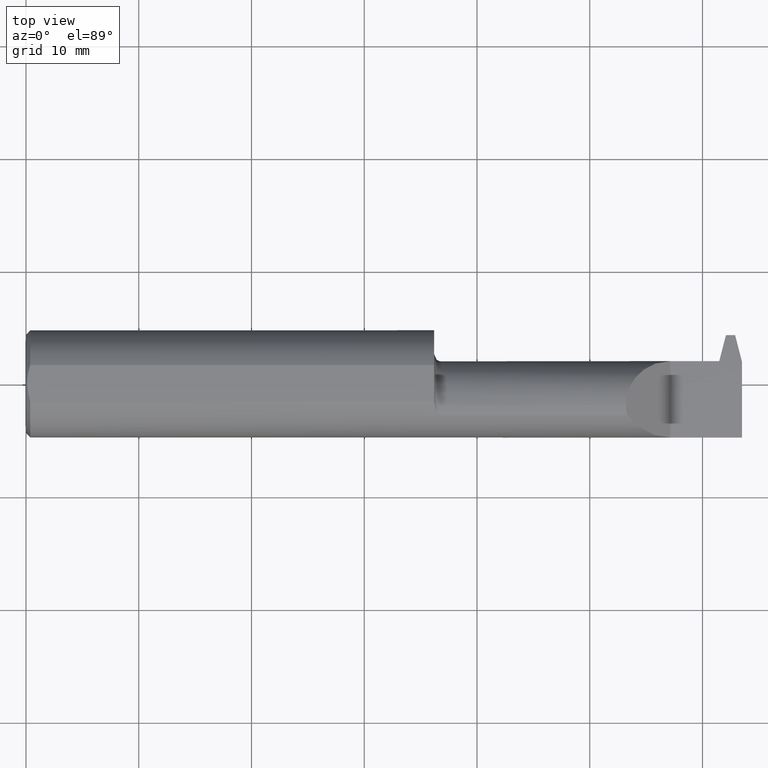
[diagram: clean part render]
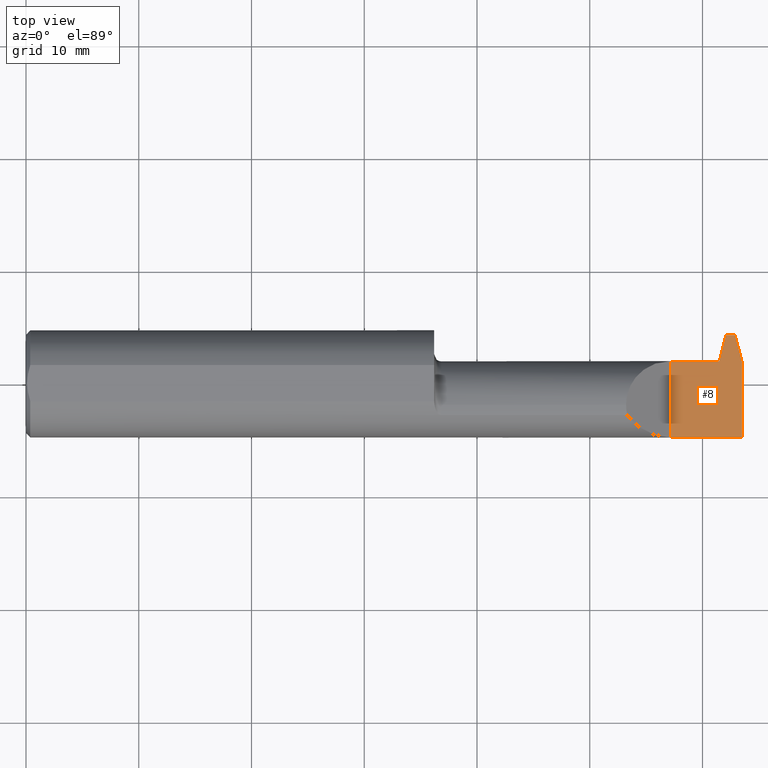
[diagram: same view with one face highlighted and labeled with its STEP entity id]
A machine part, top view. The second image highlights one B-rep face of the part: STEP entity #8.
In plain terms, the highlighted planar face has unit normal (-0, 0, -1).
Its self-contained STEP definition (entity closure, byte-faithful):
#2 = EDGE_CURVE ( 'NONE', #398, #850, #961, .T. ) ;
#8 = ADVANCED_FACE ( 'NONE', ( #949 ), #673, .F. ) ;
#32 = CARTESIAN_POINT ( 'NONE',  ( 2.443999999999999506, 0.1706500000000004402, 0.000000000000000000 ) ) ;
#45 = CARTESIAN_POINT ( 'NONE',  ( 2.420465799823614539, 0.07964999999999992919, 0.000000000000000000 ) ) ;
#58 = CARTESIAN_POINT ( 'NONE',  ( 2.420465799823614539, 0.07964999999999992919, 0.000000000000000000 ) ) ;
#79 = EDGE_CURVE ( 'NONE', #955, #260, #609, .T. ) ;
#111 = AXIS2_PLACEMENT_3D ( 'NONE', #827, #274, #296 ) ;
#112 = EDGE_LOOP ( 'NONE', ( #315, #462, #820, #389, #362, #863, #356, #532 ) ) ;
#213 = LINE ( 'NONE', #965, #301 ) ;
#216 = LINE ( 'NONE', #734, #510 ) ;
#219 = DIRECTION ( 'NONE',  ( -1.000000000000000000, 1.641749719446377136E-14, 0.000000000000000000 ) ) ;
#229 = DIRECTION ( 'NONE',  ( 0.2503800040544299499, 0.9681476403781106299, -0.000000000000000000 ) ) ;
#237 = LINE ( 'NONE', #700, #558 ) ;
#260 = VERTEX_POINT ( 'NONE', #32 ) ;
#265 = CARTESIAN_POINT ( 'NONE',  ( 2.410465799823614752, 0.07964999999999992919, 0.000000000000000000 ) ) ;
#274 = DIRECTION ( 'NONE',  ( -0.000000000000000000, 0.000000000000000000, -1.000000000000000000 ) ) ;
#291 = DIRECTION ( 'NONE',  ( -0.000000000000000000, 1.000000000000000000, -0.000000000000000000 ) ) ;
#292 = VERTEX_POINT ( 'NONE', #495 ) ;
#296 = DIRECTION ( 'NONE',  ( -1.000000000000000000, 0.000000000000000000, 0.000000000000000000 ) ) ;
#300 = CARTESIAN_POINT ( 'NONE',  ( 2.250000000000000000, 0.07964999999999992919, -4.469813191451678053E-17 ) ) ;
#301 = VECTOR ( 'NONE', #519, 39.37007874015748143 ) ;
#315 = ORIENTED_EDGE ( 'NONE', *, *, #79, .T. ) ;
#340 = VERTEX_POINT ( 'NONE', #946 ) ;
#353 = CARTESIAN_POINT ( 'NONE',  ( 1.425000000000000266, 0.07964999999999992919, -4.469813191451678053E-17 ) ) ;
#356 = ORIENTED_EDGE ( 'NONE', *, *, #528, .T. ) ;
#358 = LINE ( 'NONE', #353, #928 ) ;
#362 = ORIENTED_EDGE ( 'NONE', *, *, #443, .F. ) ;
#389 = ORIENTED_EDGE ( 'NONE', *, *, #893, .F. ) ;
#398 = VERTEX_POINT ( 'NONE', #265 ) ;
#432 = LINE ( 'NONE', #970, #452 ) ;
#437 = CARTESIAN_POINT ( 'NONE',  ( 2.250000000000000000, -0.1873499999999999888, -4.469813191451678053E-17 ) ) ;
#443 = EDGE_CURVE ( 'NONE', #484, #940, #432, .T. ) ;
#452 = VECTOR ( 'NONE', #291, 39.37007874015748143 ) ;
#462 = ORIENTED_EDGE ( 'NONE', *, *, #654, .F. ) ;
#473 = EDGE_CURVE ( 'NONE', #340, #484, #818, .T. ) ;
#480 = EDGE_CURVE ( 'NONE', #955, #292, #216, .T. ) ;
#484 = VERTEX_POINT ( 'NONE', #437 ) ;
#495 = CARTESIAN_POINT ( 'NONE',  ( 2.500000000000000000, 0.07784888572242874838, 0.000000000000000000 ) ) ;
#508 = DIRECTION ( 'NONE',  ( 0.2503800040544338912, -0.9681476403781097417, 0.000000000000000000 ) ) ;
#510 = VECTOR ( 'NONE', #508, 39.37007874015748143 ) ;
#519 = DIRECTION ( 'NONE',  ( -0.000000000000000000, 1.000000000000000000, -0.000000000000000000 ) ) ;
#528 = EDGE_CURVE ( 'NONE', #340, #292, #213, .T. ) ;
#532 = ORIENTED_EDGE ( 'NONE', *, *, #480, .F. ) ;
#537 = VECTOR ( 'NONE', #807, 39.37007874015748143 ) ;
#558 = VECTOR ( 'NONE', #229, 39.37007874015748854 ) ;
#568 = CARTESIAN_POINT ( 'NONE',  ( 2.476000000000000423, 0.1706499999999999406, 0.000000000000000000 ) ) ;
#591 = DIRECTION ( 'NONE',  ( -1.000000000000000000, -0.000000000000000000, -0.000000000000000000 ) ) ;
#597 = CARTESIAN_POINT ( 'NONE',  ( 2.500000000000000000, -0.1873499999999999888, -4.469813191451678053E-17 ) ) ;
#609 = LINE ( 'NONE', #770, #887 ) ;
#654 = EDGE_CURVE ( 'NONE', #850, #260, #237, .T. ) ;
#659 = DIRECTION ( 'NONE',  ( 1.000000000000000000, 0.000000000000000000, 0.000000000000000000 ) ) ;
#673 = PLANE ( 'NONE',  #111 ) ;
#700 = CARTESIAN_POINT ( 'NONE',  ( 2.444685452976455675, 0.1733004499999999115, 0.000000000000000000 ) ) ;
#711 = VECTOR ( 'NONE', #591, 39.37007874015748143 ) ;
#734 = CARTESIAN_POINT ( 'NONE',  ( 2.475314547023544254, 0.1733004499999999115, 0.000000000000000000 ) ) ;
#770 = CARTESIAN_POINT ( 'NONE',  ( 2.249999999999999556, 0.1706500000000036044, -4.469813191451678053E-17 ) ) ;
#807 = DIRECTION ( 'NONE',  ( 1.000000000000000000, -0.000000000000000000, -0.000000000000000000 ) ) ;
#818 = LINE ( 'NONE', #597, #711 ) ;
#820 = ORIENTED_EDGE ( 'NONE', *, *, #2, .F. ) ;
#827 = CARTESIAN_POINT ( 'NONE',  ( 2.250000000000000000, 0.2000000000000000111, -4.469813191451678053E-17 ) ) ;
#850 = VERTEX_POINT ( 'NONE', #45 ) ;
#863 = ORIENTED_EDGE ( 'NONE', *, *, #473, .F. ) ;
#887 = VECTOR ( 'NONE', #219, 39.37007874015748143 ) ;
#893 = EDGE_CURVE ( 'NONE', #940, #398, #358, .T. ) ;
#928 = VECTOR ( 'NONE', #659, 39.37007874015748143 ) ;
#940 = VERTEX_POINT ( 'NONE', #300 ) ;
#946 = CARTESIAN_POINT ( 'NONE',  ( 2.500000000000000000, -0.1873500000000000165, -4.469813191451678053E-17 ) ) ;
#949 = FACE_OUTER_BOUND ( 'NONE', #112, .T. ) ;
#955 = VERTEX_POINT ( 'NONE', #568 ) ;
#961 = LINE ( 'NONE', #58, #537 ) ;
#965 = CARTESIAN_POINT ( 'NONE',  ( 2.500000000000000000, 0.2000000000000000111, -4.469813191451678053E-17 ) ) ;
#970 = CARTESIAN_POINT ( 'NONE',  ( 2.250000000000000000, 0.2000000000000000111, -4.469813191451678053E-17 ) ) ;